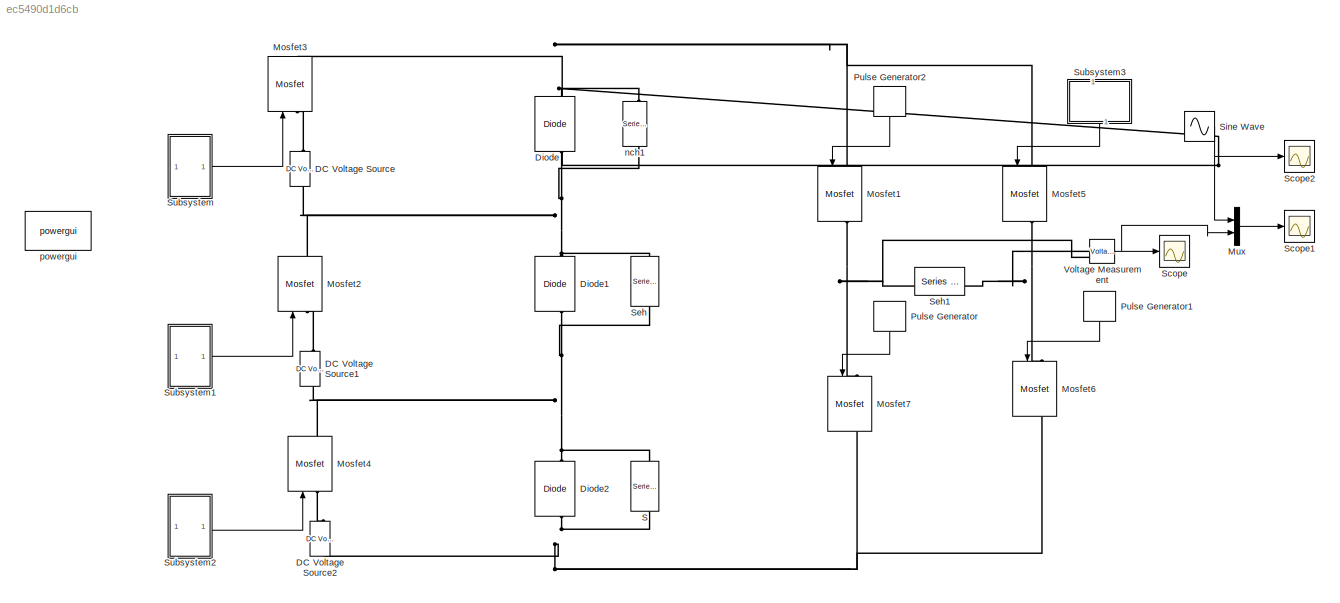
MODEL slx_ec5490d1d6cb
KIND model
CONFIG AbsTol = auto
CONFIG EnableMultiTasking = on
CONFIG FixedStep = auto
CONFIG MaxStep = auto
CONFIG MinStep = auto
CONFIG RelTol = 1e-3
CONFIG SampleTimeConstraint = Unconstrained
CONFIG SolverName = ode45
CONFIG StartTime = 0.0
CONFIG StopTime = 0.5
BLOCK [Reference] DC Voltage Source  REF=spsDCVoltageSourceLib/DC Voltage Source
  LibrarySourceBlock = sps_lib/Sources/DC Voltage Source
  NameLocation = right
  SourceBlock = spsDCVoltageSourceLib/DC Voltage Source
  SourceType = DC Voltage Source
BLOCK [Reference] DC Voltage Source1  REF=spsDCVoltageSourceLib/DC Voltage Source
  LibrarySourceBlock = sps_lib/Sources/DC Voltage Source
  NameLocation = right
  SourceBlock = spsDCVoltageSourceLib/DC Voltage Source
  SourceType = DC Voltage Source
BLOCK [Reference] DC Voltage Source2  REF=spsDCVoltageSourceLib/DC Voltage Source
  LibrarySourceBlock = sps_lib/Sources/DC Voltage Source
  NameLocation = right
  SourceBlock = spsDCVoltageSourceLib/DC Voltage Source
  SourceType = DC Voltage Source
BLOCK [Reference] Diode  REF=spsDiodeLib/Diode
  LibrarySourceBlock = sps_lib/Power Electronics/Diode
  NameLocation = right
  SourceBlock = spsDiodeLib/Diode
  SourceType = Diode
BLOCK [Reference] Diode1  REF=spsDiodeLib/Diode
  LibrarySourceBlock = sps_lib/Power Electronics/Diode
  NameLocation = right
  SourceBlock = spsDiodeLib/Diode
  SourceType = Diode
BLOCK [Reference] Diode2  REF=spsDiodeLib/Diode
  LibrarySourceBlock = sps_lib/Power Electronics/Diode
  NameLocation = right
  SourceBlock = spsDiodeLib/Diode
  SourceType = Diode
BLOCK [Reference] Mosfet1  REF=spsMosfetLib/Mosfet
  LibrarySourceBlock = sps_lib/Power Electronics/Mosfet
  NameLocation = left
  SourceBlock = spsMosfetLib/Mosfet
  SourceType = Mosfet
BLOCK [Reference] Mosfet2  REF=spsMosfetLib/Mosfet
  LibrarySourceBlock = sps_lib/Power Electronics/Mosfet
  NameLocation = right
  SourceBlock = spsMosfetLib/Mosfet
  SourceType = Mosfet
BLOCK [Reference] Mosfet3  REF=spsMosfetLib/Mosfet
  LibrarySourceBlock = sps_lib/Power Electronics/Mosfet
  NameLocation = right
  SourceBlock = spsMosfetLib/Mosfet
  SourceType = Mosfet
BLOCK [Reference] Mosfet4  REF=spsMosfetLib/Mosfet
  LibrarySourceBlock = sps_lib/Power Electronics/Mosfet
  NameLocation = right
  SourceBlock = spsMosfetLib/Mosfet
  SourceType = Mosfet
BLOCK [Reference] Mosfet5  REF=spsMosfetLib/Mosfet
  LibrarySourceBlock = sps_lib/Power Electronics/Mosfet
  NameLocation = left
  SourceBlock = spsMosfetLib/Mosfet
  SourceType = Mosfet
BLOCK [Reference] Mosfet6  REF=spsMosfetLib/Mosfet
  LibrarySourceBlock = sps_lib/Power Electronics/Mosfet
  NameLocation = left
  SourceBlock = spsMosfetLib/Mosfet
  SourceType = Mosfet
BLOCK [Reference] Mosfet7  REF=spsMosfetLib/Mosfet
  LibrarySourceBlock = sps_lib/Power Electronics/Mosfet
  NameLocation = left
  SourceBlock = spsMosfetLib/Mosfet
  SourceType = Mosfet
BLOCK [Mux] Mux
  DisplayOption = bar
  Inputs = 2
BLOCK [DiscretePulseGenerator] Pulse Generator
  NameLocation = left
  Period = 20e-3
  PhaseDelay = 15/28*20e-3
  PulseType = Time based
  PulseWidth = 13/28*100
BLOCK [DiscretePulseGenerator] Pulse Generator1
  NameLocation = left
  Period = 20e-3
  PhaseDelay = 1/28*20e-3
  PulseType = Time based
  PulseWidth = 13/28*100
BLOCK [DiscretePulseGenerator] Pulse Generator2
  NameLocation = left
  Period = 20e-3
  PulseType = Time based
  PulseWidth = 15/28*100
BLOCK [Reference] S  REF=spsSeriesRLCBranchLib/Series RLC Branch
  LibrarySourceBlock = sps_lib/Passives/Series RLC Branch
  NameLocation = left
  SourceBlock = spsSeriesRLCBranchLib/Series RLC Branch
  SourceType = Series RLC Branch
BLOCK [Scope] Scope
  ActiveDisplayYMaximum = 142.96001861956961
  ActiveDisplayYMinimum = -257.1555459782511
  DataLoggingDecimateData = on
  DataLoggingDecimation = 1
  DataLoggingLimitDataPoints = on
  DataLoggingSaveFormat = Array
  Floating = off
  GraphicalSettings = {"Style":{"BackgroundColor":[0.12941176470588237,0.12941176470588237,0.12941176470588237],"AxesColor":[0.07058823529411765,0.07058823529411765,0.07058823529411765],"LabelsColor":[0.8509803921568627,0.8509803921568627,0.8509803921568627],"PreserveColors":false,"Visible":[true],"LineStyle":["-"],"LineWidth":[1.5],"BarWidth":[0.9],"LineColor":["auto"],"LineFaceAlpha":[1],"LineEdgeAlpha":[1],"Marker":...<+1982ch>
  MultipleDisplayCache = [{"MaxYLimMag":83.58142,"MaxYLimReal":142.96001861956961,"MinYLimMag":0,"MinYLimReal":-257.1555459782511,"PlotAsMagnitudePhase":false,"ShowGrid":true,"ShowLegend":false,"Title":"%<SignalLabel>","YLabel":""}]
  NumInputPorts = 1
  ScopeFrameLocation = window
  TimeSpan = 0.04711701149425285
  Visible = on
  WasSavedAsWebScope = on
  WindowPosition = [10.000000,125.000000,1366.000000,679.000000,]
BLOCK [Scope] Scope1
  ActiveDisplayYMaximum = 246.62048252639613
  ActiveDisplayYMinimum = -228.5738506759055
  DataLoggingDecimateData = on
  DataLoggingDecimation = 1
  DataLoggingLimitDataPoints = on
  DataLoggingSaveFormat = Array
  DataLoggingVariableName = ScopeData1
  Floating = off
  GraphicalSettings = {"AxesScalingProperties":{"AlignXAxis":"Center","AlignYAxis":"Center","AutoScaleXAxisLimits":false,"AxesScaling":"Manual","AxesScalingNumUpdates":10,"ExpandOnly":true,"ScaleAxesLimitsAtStop":false,"XAxisDataRange":100,"YAxisDataRange":80},"DisplayProperties":{"ColorOrder":["auto","auto","auto","auto","auto","auto","auto","auto","auto","auto","auto","auto","auto","auto","auto","auto","auto","auto",...<+2121ch>
  MultipleDisplayCache = [{"MaxYLimMag":103.43438925376587,"MaxYLimReal":246.62048252639613,"MinYLimMag":0,"MinYLimReal":-228.5738506759055,"PlotAsMagnitudePhase":false,"ShowGrid":true,"ShowLegend":false,"Title":"%<SignalLabel>","YLabel":""}]
  NumInputPorts = 1
  ScopeFrameLocation = window
  TimeSpan = 0.04711701149425285
  WasSavedAsWebScope = on
  WindowPosition = [10.000000,125.000000,1366.000000,679.000000,]
BLOCK [Scope] Scope2
  ActiveDisplayYMaximum = 711.58282210294715
  ActiveDisplayYMinimum = -356.517052102668
  DataLoggingDecimateData = on
  DataLoggingDecimation = 1
  DataLoggingLimitDataPoints = on
  DataLoggingSaveFormat = Array
  DataLoggingVariableName = ScopeData2
  Floating = off
  GraphicalSettings = {"AxesScalingProperties":{"AlignXAxis":"Center","AlignYAxis":"Center","AutoScaleXAxisLimits":false,"AxesScaling":"Manual","AxesScalingNumUpdates":10,"ExpandOnly":true,"ScaleAxesLimitsAtStop":false,"XAxisDataRange":100,"YAxisDataRange":80},"DisplayProperties":{"ColorOrder":["auto","auto","auto","auto","auto","auto","auto","auto","auto","auto","auto","auto","auto","auto","auto","auto","auto","auto",...<+1983ch>
  MultipleDisplayCache = [{"MaxYLimMag":83.58142,"MaxYLimReal":711.58282210294715,"MinYLimMag":0,"MinYLimReal":-356.517052102668,"PlotAsMagnitudePhase":false,"ShowGrid":true,"ShowLegend":false,"Title":"%<SignalLabel>","YLabel":""}]
  NumInputPorts = 1
  ScopeFrameLocation = window
  TimeSpan = 0.04711701149425285
  Visible = on
  WasSavedAsWebScope = on
  WindowPosition = [10.000000,125.000000,1366.000000,679.000000,]
BLOCK [Reference] Seh  REF=spsSeriesRLCBranchLib/Series RLC Branch
  LibrarySourceBlock = sps_lib/Passives/Series RLC Branch
  NameLocation = left
  SourceBlock = spsSeriesRLCBranchLib/Series RLC Branch
  SourceType = Series RLC Branch
BLOCK [Reference] Seh1  REF=spsSeriesRLCBranchLib/Series RLC Branch
  LibrarySourceBlock = sps_lib/Passives/Series RLC Branch
  NameLocation = top
  SourceBlock = spsSeriesRLCBranchLib/Series RLC Branch
  SourceType = Series RLC Branch
BLOCK [Sin] Sine Wave
  Amplitude = 80
  Frequency = 50*2*pi
  Phase = (120/360)*100
  SampleTime = 0
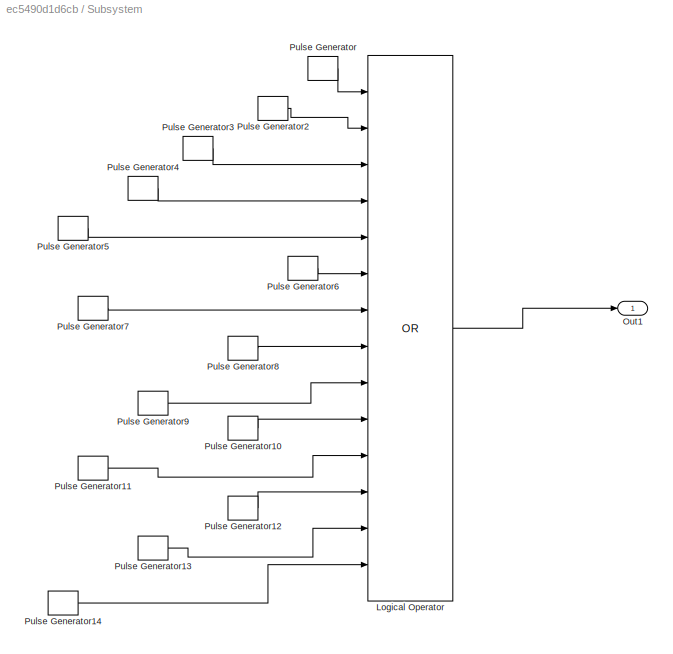
BLOCK [SubSystem] Subsystem
BLOCK [Logic] Subsystem/Logical Operator
  AllPortsSameDT = off
  Inputs = 14
  Operator = OR
  OutDataTypeStr = boolean
BLOCK [Outport] Subsystem/Out1
BLOCK [DiscretePulseGenerator] Subsystem/Pulse Generator
  Period = 20e-3
  PhaseDelay = 0.7143e-3
  PulseType = Time based
  PulseWidth = 3.5714
BLOCK [DiscretePulseGenerator] Subsystem/Pulse Generator10
  Period = 20e-3
  PhaseDelay = 19/28*20e-3
  PulseType = Time based
  PulseWidth = 3.5714
BLOCK [DiscretePulseGenerator] Subsystem/Pulse Generator11
  Period = 20e-3
  PhaseDelay = 21/28*20e-3
  PulseType = Time based
  PulseWidth = 3.5714
BLOCK [DiscretePulseGenerator] Subsystem/Pulse Generator12
  Period = 20e-3
  PhaseDelay = 23/28*20e-3
  PulseType = Time based
  PulseWidth = 3.5714
BLOCK [DiscretePulseGenerator] Subsystem/Pulse Generator13
  Period = 20e-3
  PhaseDelay = 25/28*20e-3
  PulseType = Time based
  PulseWidth = 3.5714
BLOCK [DiscretePulseGenerator] Subsystem/Pulse Generator14
  Period = 20e-3
  PhaseDelay = 27/28*20e-3
  PulseType = Time based
  PulseWidth = 3.5714
BLOCK [DiscretePulseGenerator] Subsystem/Pulse Generator2
  Period = 20e-3
  PhaseDelay = 3/28*20e-3
  PulseType = Time based
  PulseWidth = 3.5714
BLOCK [DiscretePulseGenerator] Subsystem/Pulse Generator3
  Period = 20e-3
  PhaseDelay = 5/28*20e-3
  PulseType = Time based
  PulseWidth = 3.5714
BLOCK [DiscretePulseGenerator] Subsystem/Pulse Generator4
  Period = 20e-3
  PhaseDelay = 7/28*20e-3
  PulseType = Time based
  PulseWidth = 3.5714
BLOCK [DiscretePulseGenerator] Subsystem/Pulse Generator5
  Period = 20e-3
  PhaseDelay = 9/28*20e-3
  PulseType = Time based
  PulseWidth = 3.5714
BLOCK [DiscretePulseGenerator] Subsystem/Pulse Generator6
  Period = 20e-3
  PhaseDelay = 11/28*20e-3
  PulseType = Time based
  PulseWidth = 3.5714
BLOCK [DiscretePulseGenerator] Subsystem/Pulse Generator7
  Period = 20e-3
  PhaseDelay = 13/28*20e-3
  PulseType = Time based
  PulseWidth = 3.5714
BLOCK [DiscretePulseGenerator] Subsystem/Pulse Generator8
  Period = 20e-3
  PhaseDelay = 15/28*20e-3
  PulseType = Time based
  PulseWidth = 3.5714
BLOCK [DiscretePulseGenerator] Subsystem/Pulse Generator9
  Period = 20e-3
  PhaseDelay = 17/28*20e-3
  PulseType = Time based
  PulseWidth = 3.5714
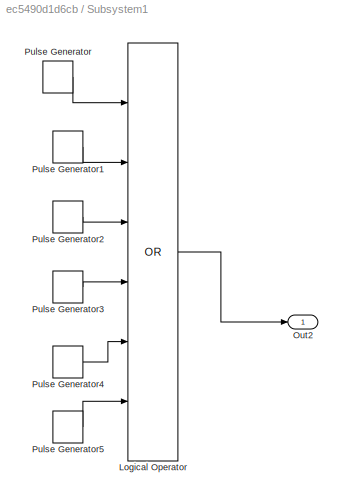
BLOCK [SubSystem] Subsystem1
BLOCK [Logic] Subsystem1/Logical Operator
  AllPortsSameDT = off
  Inputs = 6
  Operator = OR
  OutDataTypeStr = boolean
BLOCK [Outport] Subsystem1/Out2
BLOCK [DiscretePulseGenerator] Subsystem1/Pulse Generator
  Period = 20e-3
  PhaseDelay = 2/28*20e-3
  PulseType = Time based
  PulseWidth = 2/28*100
BLOCK [DiscretePulseGenerator] Subsystem1/Pulse Generator1
  Period = 20e-3
  PhaseDelay = 6/28*20e-3
  PulseType = Time based
  PulseWidth = 3/28*100
BLOCK [DiscretePulseGenerator] Subsystem1/Pulse Generator2
  Period = 20e-3
  PhaseDelay = 11/28*20e-3
  PulseType = Time based
  PulseWidth = 2/28*100
BLOCK [DiscretePulseGenerator] Subsystem1/Pulse Generator3
  Period = 20e-3
  PhaseDelay = 16/28*20e-3
  PulseType = Time based
  PulseWidth = 2/28*100
BLOCK [DiscretePulseGenerator] Subsystem1/Pulse Generator4
  Period = 20e-3
  PhaseDelay = 20/28*20e-3
  PulseType = Time based
  PulseWidth = 3/28*100
BLOCK [DiscretePulseGenerator] Subsystem1/Pulse Generator5
  Period = 20e-3
  PhaseDelay = 25/28*20e-3
  PulseType = Time based
  PulseWidth = 2/28*100
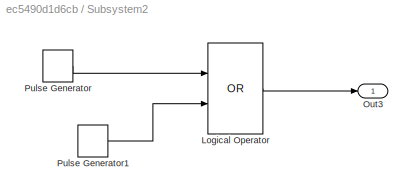
BLOCK [SubSystem] Subsystem2
BLOCK [Logic] Subsystem2/Logical Operator
  AllPortsSameDT = off
  Operator = OR
  OutDataTypeStr = boolean
BLOCK [Outport] Subsystem2/Out3
BLOCK [DiscretePulseGenerator] Subsystem2/Pulse Generator
  Period = 20e-3
  PhaseDelay = 4/28*20e-3
  PulseType = Time based
  PulseWidth = 7/28*100
BLOCK [DiscretePulseGenerator] Subsystem2/Pulse Generator1
  Period = 20e-3
  PhaseDelay = 18/28*20e-3
  PulseType = Time based
  PulseWidth = 7/28*100
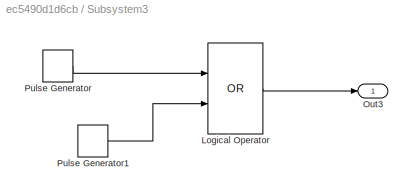
BLOCK [SubSystem] Subsystem3
  NameLocation = left
BLOCK [Logic] Subsystem3/Logical Operator
  AllPortsSameDT = off
  Operator = OR
  OutDataTypeStr = boolean
BLOCK [Outport] Subsystem3/Out3
BLOCK [DiscretePulseGenerator] Subsystem3/Pulse Generator
  Period = 20e-3
  PulseType = Time based
  PulseWidth = 1/28*100
BLOCK [DiscretePulseGenerator] Subsystem3/Pulse Generator1
  Period = 20e-3
  PhaseDelay = 15/28*20e-3
  PulseType = Time based
  PulseWidth = 14/28*100
BLOCK [Reference] Voltage Measurement  REF=spsVoltageMeasurementLib/Voltage Measurement
  LibrarySourceBlock = sps_lib/Sensors and Measurements/Voltage Measurement
  SourceBlock = spsVoltageMeasurementLib/Voltage Measurement
  SourceType = Voltage Measurement
  UserDataPersistent = on
BLOCK [Reference] nch1  REF=spsSeriesRLCBranchLib/Series RLC Branch
  LibrarySourceBlock = sps_lib/Passives/Series RLC Branch
  NameLocation = left
  SourceBlock = spsSeriesRLCBranchLib/Series RLC Branch
  SourceType = Series RLC Branch
BLOCK [Reference] powergui  REF=sps_lib/powergui
  LibrarySourceBlock = sps_lib/powergui
  Priority = 1
  SourceBlock = sps_lib/powergui
  SourceType = PSB option menu block
LINE Mux:1 -> Scope1:1
LINE Pulse Generator1:1 -> Mosfet6:1
LINE Pulse Generator2:1 -> Mosfet1:1
LINE Pulse Generator:1 -> Mosfet7:1
NET Sine Wave:1 -> Mux:1, Scope2:1
LINE Subsystem/Logical Operator:1 -> Subsystem/Out1:1
LINE Subsystem/Pulse Generator10:1 -> Subsystem/Logical Operator:10
LINE Subsystem/Pulse Generator11:1 -> Subsystem/Logical Operator:11
LINE Subsystem/Pulse Generator12:1 -> Subsystem/Logical Operator:12
LINE Subsystem/Pulse Generator13:1 -> Subsystem/Logical Operator:13
LINE Subsystem/Pulse Generator14:1 -> Subsystem/Logical Operator:14
LINE Subsystem/Pulse Generator2:1 -> Subsystem/Logical Operator:2
LINE Subsystem/Pulse Generator3:1 -> Subsystem/Logical Operator:3
LINE Subsystem/Pulse Generator4:1 -> Subsystem/Logical Operator:4
LINE Subsystem/Pulse Generator5:1 -> Subsystem/Logical Operator:5
LINE Subsystem/Pulse Generator6:1 -> Subsystem/Logical Operator:6
LINE Subsystem/Pulse Generator7:1 -> Subsystem/Logical Operator:7
LINE Subsystem/Pulse Generator8:1 -> Subsystem/Logical Operator:8
LINE Subsystem/Pulse Generator9:1 -> Subsystem/Logical Operator:9
LINE Subsystem/Pulse Generator:1 -> Subsystem/Logical Operator:1
LINE Subsystem1/Logical Operator:1 -> Subsystem1/Out2:1
LINE Subsystem1/Pulse Generator1:1 -> Subsystem1/Logical Operator:2
LINE Subsystem1/Pulse Generator2:1 -> Subsystem1/Logical Operator:3
LINE Subsystem1/Pulse Generator3:1 -> Subsystem1/Logical Operator:4
LINE Subsystem1/Pulse Generator4:1 -> Subsystem1/Logical Operator:5
LINE Subsystem1/Pulse Generator5:1 -> Subsystem1/Logical Operator:6
LINE Subsystem1/Pulse Generator:1 -> Subsystem1/Logical Operator:1
LINE Subsystem1:1 -> Mosfet2:1
LINE Subsystem2/Logical Operator:1 -> Subsystem2/Out3:1
LINE Subsystem2/Pulse Generator1:1 -> Subsystem2/Logical Operator:2
LINE Subsystem2/Pulse Generator:1 -> Subsystem2/Logical Operator:1
LINE Subsystem2:1 -> Mosfet4:1
LINE Subsystem3/Logical Operator:1 -> Subsystem3/Out3:1
LINE Subsystem3/Pulse Generator1:1 -> Subsystem3/Logical Operator:2
LINE Subsystem3/Pulse Generator:1 -> Subsystem3/Logical Operator:1
LINE Subsystem3:1 -> Mosfet5:1
LINE Subsystem:1 -> Mosfet3:1
NET Voltage Measurement:1 -> Mux:2, Scope:1
PNET net1: DC Voltage Source1:LConn1 -- Diode1:LConn1 -- Diode2:RConn1 -- Mosfet4:RConn1 -- S:LConn1 -- Seh:RConn1
PLINE DC Voltage Source1:RConn1 -- Mosfet2:LConn1
PNET net2: DC Voltage Source2:LConn1 -- Diode2:LConn1 -- Mosfet6:RConn1 -- Mosfet7:RConn1 -- S:RConn1
PLINE DC Voltage Source2:RConn1 -- Mosfet4:LConn1
PNET net3: DC Voltage Source:LConn1 -- Diode1:RConn1 -- Diode:LConn1 -- Mosfet2:RConn1 -- Seh:LConn1 -- nch1:RConn1
PLINE DC Voltage Source:RConn1 -- Mosfet3:LConn1
PNET net4: Diode:RConn1 -- Mosfet1:LConn1 -- Mosfet3:RConn1 -- Mosfet5:LConn1 -- nch1:LConn1
PNET net5: Mosfet1:RConn1 -- Mosfet7:LConn1 -- Seh1:RConn1 -- Voltage Measurement:LConn2
PNET net6: Mosfet5:RConn1 -- Mosfet6:LConn1 -- Seh1:LConn1 -- Voltage Measurement:LConn1
note: NET lines group one-source signal fan-out (src -> all destinations, sorted); 1:1 wires keep LINE; PNET lines group multi-terminal physical nets as a canonical sorted terminal list (undirected conserving connections); 2-terminal nets keep the pairwise PLINE form
